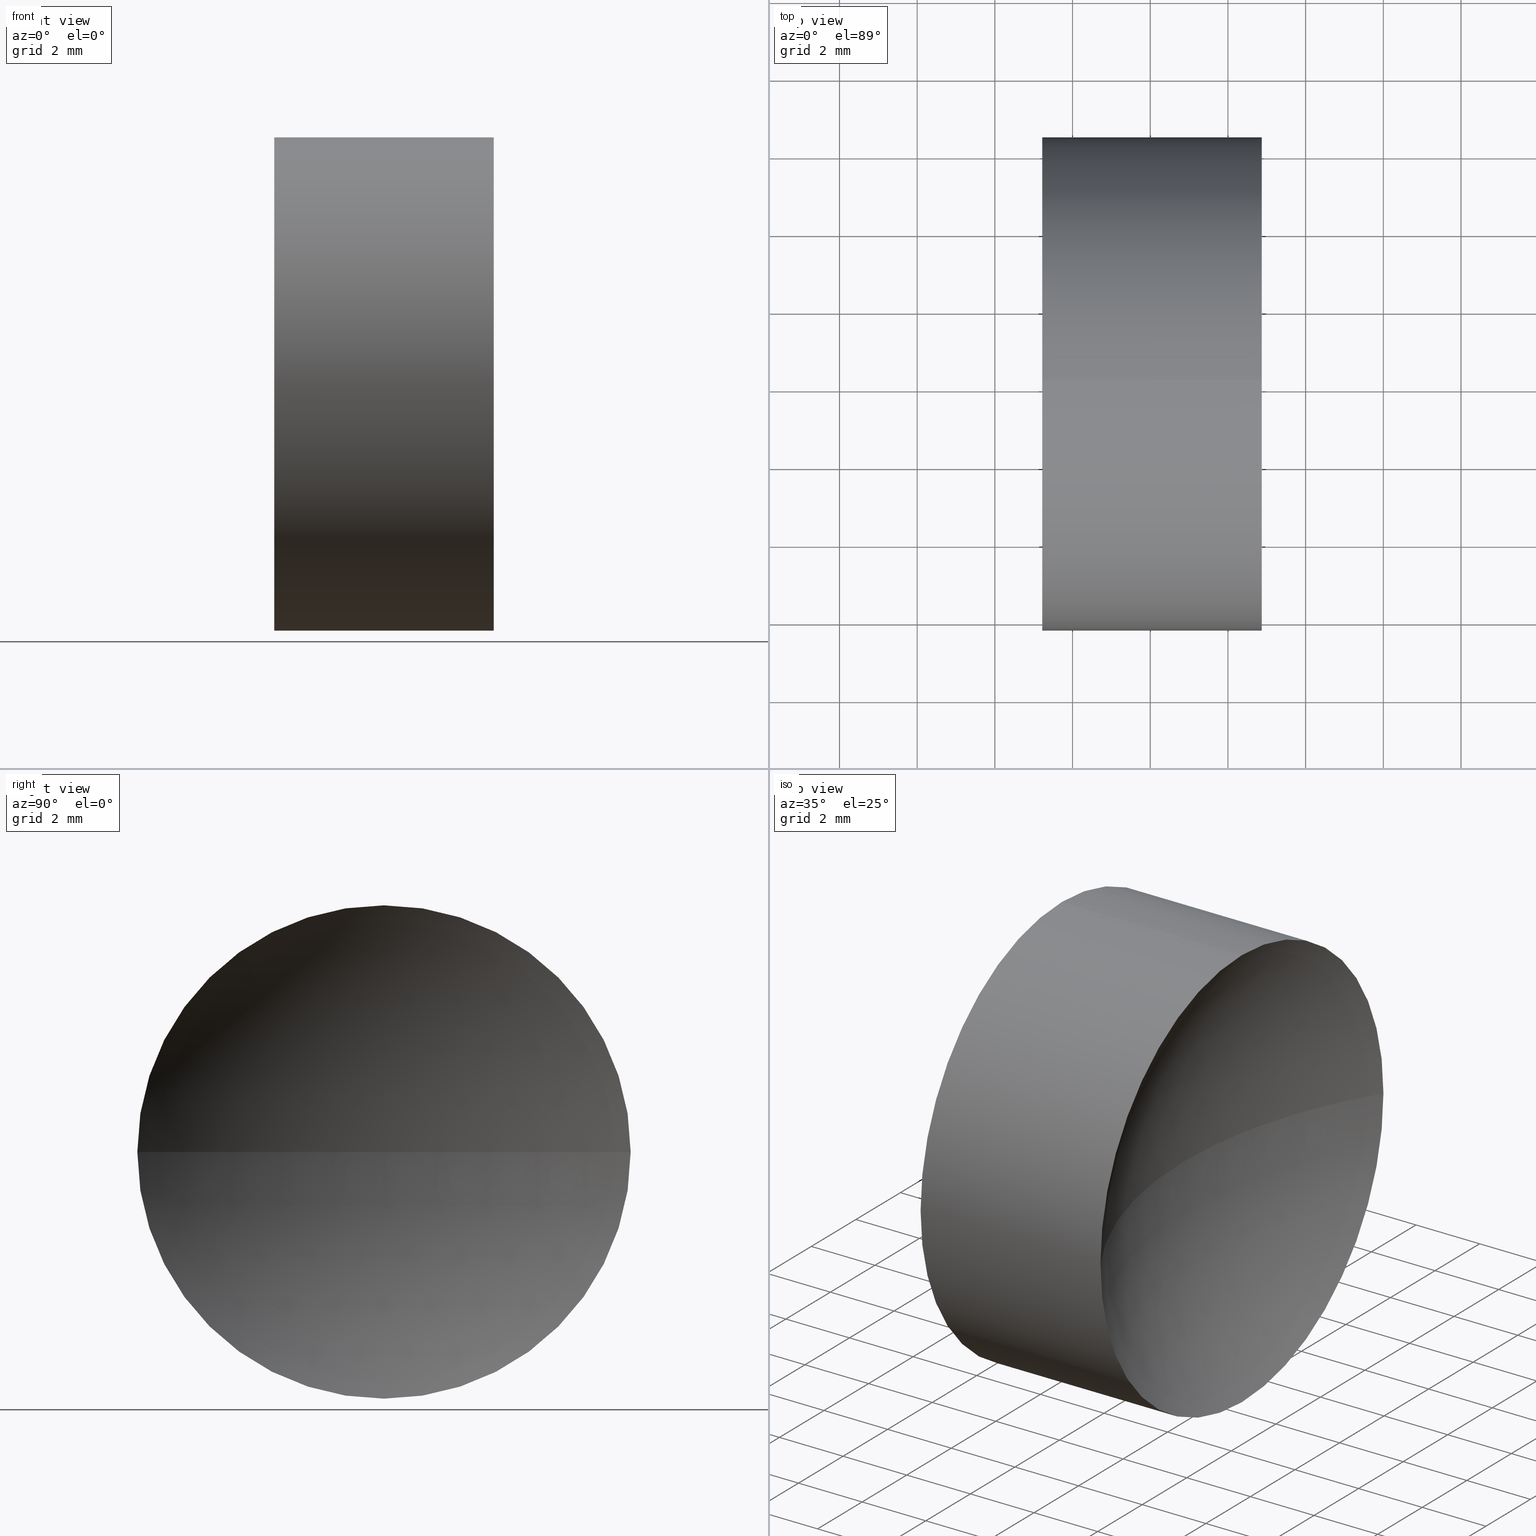
[diagram: canonical four-view strip — front | top / right | iso, engineering-drawing reading convention]
A machine part, canonical four-view strip (front | top / right | iso — engineering-drawing reading convention). The complete STEP part file that produces these views, byte-faithful:
ISO-10303-21;
HEADER;
FILE_DESCRIPTION (( 'STEP AP214' ),
    '1' );
FILE_NAME ('130054.STEP',
    '2019-07-02T03:27:17',
    ( '' ),
    ( '' ),
    'SwSTEP 2.0',
    'SolidWorks 2016',
    '' );
FILE_SCHEMA (( 'AUTOMOTIVE_DESIGN' ));
ENDSEC;

DATA;
#1 = VERTEX_POINT ( 'NONE', #7 ) ;
#2 = AXIS2_PLACEMENT_3D ( 'NONE', #103, #70, #120 ) ;
#3 = SURFACE_STYLE_FILL_AREA ( #156 ) ;
#4 = EDGE_CURVE ( 'NONE', #100, #23, #79, .T. ) ;
#5 = VERTEX_POINT ( 'NONE', #165 ) ;
#6 = ORIENTED_EDGE ( 'NONE', *, *, #162, .T. ) ;
#7 = CARTESIAN_POINT ( 'NONE',  ( 50.87198139630497500, 19.73904114919495700, 0.0000000000000000000 ) ) ;
#8 = PRODUCT_DEFINITION ( 'δ֪', '', #138, #195 ) ;
#9 = FILL_AREA_STYLE ('',( #210 ) ) ;
#10 = DIRECTION ( 'NONE',  ( 0.0000000000000000000, 1.000000000000000000, 0.0000000000000000000 ) ) ;
#11 = ORIENTED_EDGE ( 'NONE', *, *, #213, .F. ) ;
#12 = DIRECTION ( 'NONE',  ( 0.0000000000000000000, 0.0000000000000000000, -1.000000000000000000 ) ) ;
#13 = CIRCLE ( 'NONE', #94, 6.349999999999997900 ) ;
#14 = CARTESIAN_POINT ( 'NONE',  ( 45.21846257205499600, 26.08904114919495900, 6.349999999999997900 ) ) ;
#15 = DIRECTION ( 'NONE',  ( 0.0000000000000000000, 0.0000000000000000000, -1.000000000000000000 ) ) ;
#16 = AXIS2_PLACEMENT_3D ( 'NONE', #187, #188, #136 ) ;
#17 = CARTESIAN_POINT ( 'NONE',  ( 45.21846257205499600, 26.08904114919495900, 0.0000000000000000000 ) ) ;
#18 = PRODUCT_CONTEXT ( 'NONE', #174, 'mechanical' ) ;
#19 = DIRECTION ( 'NONE',  ( 0.0000000000000000000, 0.0000000000000000000, 1.000000000000000000 ) ) ;
#20 = EDGE_LOOP ( 'NONE', ( #208, #149, #77, #201 ) ) ;
#21 = CYLINDRICAL_SURFACE ( 'NONE', #151, 6.349999999999997900 ) ;
#22 = AXIS2_PLACEMENT_3D ( 'NONE', #66, #119, #84 ) ;
#23 = VERTEX_POINT ( 'NONE', #82 ) ;
#24 = PRODUCT_RELATED_PRODUCT_CATEGORY ( 'part', '', ( #229 ) ) ;
#25 = SURFACE_STYLE_FILL_AREA ( #9 ) ;
#26 = FACE_OUTER_BOUND ( 'NONE', #128, .T. ) ;
#27 = CARTESIAN_POINT ( 'NONE',  ( 60.99522198417998500, 26.08904114919495900, 0.0000000000000000000 ) ) ;
#28 = CARTESIAN_POINT ( 'NONE',  ( 42.44986111413682300, 26.08904114919495900, -6.349999999999997900 ) ) ;
#29 = SURFACE_SIDE_STYLE ('',( #25 ) ) ;
#30 = SPHERICAL_SURFACE ( 'NONE', #16, 11.94999999999999900 ) ;
#31 =( LENGTH_UNIT ( ) NAMED_UNIT ( * ) SI_UNIT ( .MILLI., .METRE. ) );
#32 = CIRCLE ( 'NONE', #127, 11.94999999999999900 ) ;
#33 = CARTESIAN_POINT ( 'NONE',  ( 35.09522198417998600, 26.08904114919495900, 0.0000000000000000000 ) ) ;
#34 = EDGE_CURVE ( 'NONE', #197, #190, #220, .T. ) ;
#35 = STYLED_ITEM ( 'NONE', ( #96 ), #95 ) ;
#36 = CARTESIAN_POINT ( 'NONE',  ( 35.09522198417998600, 26.08904114919495900, 0.0000000000000000000 ) ) ;
#37 = DIRECTION ( 'NONE',  ( 1.000000000000000000, 0.0000000000000000000, 0.0000000000000000000 ) ) ;
#38 = CARTESIAN_POINT ( 'NONE',  ( 45.21846257205499600, 26.08904114919495900, 0.0000000000000000000 ) ) ;
#39 = DIRECTION ( 'NONE',  ( 0.0000000000000000000, 0.0000000000000000000, 1.000000000000000000 ) ) ;
#40 = APPLICATION_PROTOCOL_DEFINITION ( 'draft international standard', 'automotive_design', 1998, #74 ) ;
#41 = SPHERICAL_SURFACE ( 'NONE', #46, 11.94999999999999800 ) ;
#42 = ORIENTED_EDGE ( 'NONE', *, *, #178, .T. ) ;
#43 = DIRECTION ( 'NONE',  ( -1.000000000000000000, -0.0000000000000000000, -0.0000000000000000000 ) ) ;
#44 = EDGE_CURVE ( 'NONE', #215, #113, #163, .T. ) ;
#45 = ADVANCED_FACE ( 'NONE', ( #132 ), #122, .F. ) ;
#46 = AXIS2_PLACEMENT_3D ( 'NONE', #33, #15, #10 ) ;
#47 = ORIENTED_EDGE ( 'NONE', *, *, #34, .T. ) ;
#48 = CARTESIAN_POINT ( 'NONE',  ( 35.09522198417998600, 26.08904114919495900, 0.0000000000000000000 ) ) ;
#49 = COLOUR_RGB ( '',1.000000000000000000, 1.000000000000000000, 1.000000000000000000 ) ;
#50 = DIRECTION ( 'NONE',  ( -1.000000000000000000, 0.0000000000000000000, 0.0000000000000000000 ) ) ;
#51 = CLOSED_SHELL ( 'NONE', ( #131, #97, #160, #45, #182, #114 ) ) ;
#52 = ORIENTED_EDGE ( 'NONE', *, *, #205, .T. ) ;
#53 = DIRECTION ( 'NONE',  ( 1.000000000000000000, 0.0000000000000000000, 0.0000000000000000000 ) ) ;
#54 = DIRECTION ( 'NONE',  ( 0.0000000000000000000, 0.0000000000000000000, 1.000000000000000000 ) ) ;
#55 = AXIS2_PLACEMENT_3D ( 'NONE', #194, #134, #121 ) ;
#56 = DIRECTION ( 'NONE',  ( 0.0000000000000000000, 0.0000000000000000000, 1.000000000000000000 ) ) ;
#57 = UNCERTAINTY_MEASURE_WITH_UNIT (LENGTH_MEASURE( 1.000000000000000100E-005 ), #110, 'distance_accuracy_value', 'NONE');
#58 = DIRECTION ( 'NONE',  ( 0.0000000000000000000, 0.0000000000000000000, 1.000000000000000000 ) ) ;
#59 = ORIENTED_EDGE ( 'NONE', *, *, #205, .F. ) ;
#60 = AXIS2_PLACEMENT_3D ( 'NONE', #68, #12, #50 ) ;
#61 = ORIENTED_EDGE ( 'NONE', *, *, #44, .T. ) ;
#62 = CIRCLE ( 'NONE', #118, 6.350000000000005000 ) ;
#63 = EDGE_LOOP ( 'NONE', ( #144, #167, #6, #61, #99, #59 ) ) ;
#64 = ORIENTED_EDGE ( 'NONE', *, *, #44, .F. ) ;
#65 = ORIENTED_EDGE ( 'NONE', *, *, #145, .T. ) ;
#66 = CARTESIAN_POINT ( 'NONE',  ( 42.44986111413682300, 26.08904114919495900, 0.0000000000000000000 ) ) ;
#67 = ORIENTED_EDGE ( 'NONE', *, *, #221, .T. ) ;
#68 = CARTESIAN_POINT ( 'NONE',  ( 60.99522198417998500, 26.08904114919495900, 0.0000000000000000000 ) ) ;
#69 = EDGE_LOOP ( 'NONE', ( #65, #111, #204, #141, #64, #137 ) ) ;
#70 = DIRECTION ( 'NONE',  ( -1.000000000000000000, -0.0000000000000000000, -0.0000000000000000000 ) ) ;
#71 = FACE_OUTER_BOUND ( 'NONE', #63, .T. ) ;
#72 = AXIS2_PLACEMENT_3D ( 'NONE', #36, #86, #53 ) ;
#73 =( GEOMETRIC_REPRESENTATION_CONTEXT ( 3 ) GLOBAL_UNCERTAINTY_ASSIGNED_CONTEXT ( ( #223 ) ) GLOBAL_UNIT_ASSIGNED_CONTEXT ( ( #140, #173, #179 ) ) REPRESENTATION_CONTEXT ( 'NONE', 'WORKASPACE' ) );
#74 = APPLICATION_CONTEXT ( 'automotive_design' ) ;
#75 = CARTESIAN_POINT ( 'NONE',  ( 45.21846257205499600, 26.08904114919495900, 0.0000000000000000000 ) ) ;
#76 = SPHERICAL_SURFACE ( 'NONE', #55, 11.94999999999999800 ) ;
#77 = ORIENTED_EDGE ( 'NONE', *, *, #148, .F. ) ;
#78 = CIRCLE ( 'NONE', #60, 11.94999999999999600 ) ;
#79 = LINE ( 'NONE', #28, #177 ) ;
#80 = AXIS2_PLACEMENT_3D ( 'NONE', #153, #214, #54 ) ;
#81 =( GEOMETRIC_REPRESENTATION_CONTEXT ( 3 ) GLOBAL_UNCERTAINTY_ASSIGNED_CONTEXT ( ( #193 ) ) GLOBAL_UNIT_ASSIGNED_CONTEXT ( ( #31, #230, #147 ) ) REPRESENTATION_CONTEXT ( 'NONE', 'WORKASPACE' ) );
#82 = CARTESIAN_POINT ( 'NONE',  ( 45.21846257205499600, 26.08904114919495900, -6.349999999999997900 ) ) ;
#83 = CARTESIAN_POINT ( 'NONE',  ( 42.44986111413682300, 26.08904114919495900, 6.349999999999997900 ) ) ;
#84 = DIRECTION ( 'NONE',  ( 0.0000000000000000000, 0.0000000000000000000, 1.000000000000000000 ) ) ;
#85 = VECTOR ( 'NONE', #168, 1000.000000000000000 ) ;
#86 = DIRECTION ( 'NONE',  ( 0.0000000000000000000, 0.0000000000000000000, 1.000000000000000000 ) ) ;
#87 = DIRECTION ( 'NONE',  ( 0.0000000000000000000, 0.0000000000000000000, 1.000000000000000000 ) ) ;
#88 = CARTESIAN_POINT ( 'NONE',  ( 50.87198139630497500, 26.08904114919495900, 6.350000000000005000 ) ) ;
#89 = CARTESIAN_POINT ( 'NONE',  ( 45.21846257205499600, 32.43904114919494900, 0.0000000000000000000 ) ) ;
#90 = FILL_AREA_STYLE_COLOUR ( '', #49 ) ;
#91 = CIRCLE ( 'NONE', #72, 11.94999999999999600 ) ;
#92 = EDGE_CURVE ( 'NONE', #5, #93, #32, .T. ) ;
#93 = VERTEX_POINT ( 'NONE', #186 ) ;
#94 = AXIS2_PLACEMENT_3D ( 'NONE', #75, #139, #39 ) ;
#95 = ADVANCED_BREP_SHAPE_REPRESENTATION ( '130054', ( #172, #207 ), #73 ) ;
#97 = ADVANCED_FACE ( 'NONE', ( #158 ), #224, .T. ) ;
#96 = PRESENTATION_STYLE_ASSIGNMENT (( #176 ) ) ;
#98 = AXIS2_PLACEMENT_3D ( 'NONE', #170, #191, #87 ) ;
#99 = ORIENTED_EDGE ( 'NONE', *, *, #221, .F. ) ;
#100 = VERTEX_POINT ( 'NONE', #123 ) ;
#101 = DIRECTION ( 'NONE',  ( 0.0000000000000000000, -1.000000000000000000, 0.0000000000000000000 ) ) ;
#102 = CARTESIAN_POINT ( 'NONE',  ( 60.99522198417998500, 26.08904114919495900, 0.0000000000000000000 ) ) ;
#103 = CARTESIAN_POINT ( 'NONE',  ( 50.87198139630497500, 26.08904114919495900, 0.0000000000000000000 ) ) ;
#104 = CARTESIAN_POINT ( 'NONE',  ( 47.04522198417998200, 26.08904114919495900, 0.0000000000000000000 ) ) ;
#105 = EDGE_LOOP ( 'NONE', ( #124, #11, #169, #200 ) ) ;
#106 = CARTESIAN_POINT ( 'NONE',  ( 0.0000000000000000000, 0.0000000000000000000, 0.0000000000000000000 ) ) ;
#107 = AXIS2_PLACEMENT_3D ( 'NONE', #27, #209, #101 ) ;
#108 = AXIS2_PLACEMENT_3D ( 'NONE', #199, #155, #58 ) ;
#109 = ORIENTED_EDGE ( 'NONE', *, *, #159, .F. ) ;
#110 =( LENGTH_UNIT ( ) NAMED_UNIT ( * ) SI_UNIT ( .MILLI., .METRE. ) );
#111 = ORIENTED_EDGE ( 'NONE', *, *, #4, .T. ) ;
#112 = AXIS2_PLACEMENT_3D ( 'NONE', #38, #43, #19 ) ;
#113 = VERTEX_POINT ( 'NONE', #14 ) ;
#114 = ADVANCED_FACE ( 'NONE', ( #116 ), #76, .F. ) ;
#115 = EDGE_LOOP ( 'NONE', ( #184, #222, #42, #52 ) ) ;
#116 = FACE_OUTER_BOUND ( 'NONE', #115, .T. ) ;
#117 = STYLED_ITEM ( 'NONE', ( #130 ), #172 ) ;
#118 = AXIS2_PLACEMENT_3D ( 'NONE', #157, #217, #218 ) ;
#119 = DIRECTION ( 'NONE',  ( -1.000000000000000000, -0.0000000000000000000, -0.0000000000000000000 ) ) ;
#120 = DIRECTION ( 'NONE',  ( 0.0000000000000000000, 0.0000000000000000000, 1.000000000000000000 ) ) ;
#121 = DIRECTION ( 'NONE',  ( 0.0000000000000000000, 1.000000000000000000, 0.0000000000000000000 ) ) ;
#122 = SPHERICAL_SURFACE ( 'NONE', #107, 11.94999999999999900 ) ;
#123 = CARTESIAN_POINT ( 'NONE',  ( 50.87198139630497500, 26.08904114919495900, -6.350000000000005000 ) ) ;
#124 = ORIENTED_EDGE ( 'NONE', *, *, #92, .F. ) ;
#125 = APPLICATION_PROTOCOL_DEFINITION ( 'draft international standard', 'automotive_design', 1998, #174 ) ;
#126 = CIRCLE ( 'NONE', #2, 6.350000000000005000 ) ;
#127 = AXIS2_PLACEMENT_3D ( 'NONE', #102, #212, #211 ) ;
#128 = EDGE_LOOP ( 'NONE', ( #109, #47, #67, #143 ) ) ;
#129 = MECHANICAL_DESIGN_GEOMETRIC_PRESENTATION_REPRESENTATION (  '', ( #35 ), #133 ) ;
#130 = PRESENTATION_STYLE_ASSIGNMENT (( #146 ) ) ;
#131 = ADVANCED_FACE ( 'NONE', ( #26 ), #41, .F. ) ;
#132 = FACE_OUTER_BOUND ( 'NONE', #105, .T. ) ;
#133 =( GEOMETRIC_REPRESENTATION_CONTEXT ( 3 ) GLOBAL_UNCERTAINTY_ASSIGNED_CONTEXT ( ( #57 ) ) GLOBAL_UNIT_ASSIGNED_CONTEXT ( ( #110, #154, #232 ) ) REPRESENTATION_CONTEXT ( 'NONE', 'WORKASPACE' ) );
#134 = DIRECTION ( 'NONE',  ( 0.0000000000000000000, 0.0000000000000000000, -1.000000000000000000 ) ) ;
#135 = DIRECTION ( 'NONE',  ( -1.000000000000000000, -0.0000000000000000000, -0.0000000000000000000 ) ) ;
#136 = DIRECTION ( 'NONE',  ( 0.0000000000000000000, -1.000000000000000000, 0.0000000000000000000 ) ) ;
#137 = ORIENTED_EDGE ( 'NONE', *, *, #213, .T. ) ;
#138 = PRODUCT_DEFINITION_FORMATION_WITH_SPECIFIED_SOURCE ( '�κ�', '', #229, .NOT_KNOWN. ) ;
#139 = DIRECTION ( 'NONE',  ( -1.000000000000000000, -0.0000000000000000000, -0.0000000000000000000 ) ) ;
#140 =( LENGTH_UNIT ( ) NAMED_UNIT ( * ) SI_UNIT ( .MILLI., .METRE. ) );
#141 = ORIENTED_EDGE ( 'NONE', *, *, #203, .F. ) ;
#142 = CIRCLE ( 'NONE', #98, 6.349999999999997900 ) ;
#143 = ORIENTED_EDGE ( 'NONE', *, *, #203, .T. ) ;
#144 = ORIENTED_EDGE ( 'NONE', *, *, #4, .F. ) ;
#145 = EDGE_CURVE ( 'NONE', #5, #100, #126, .T. ) ;
#146 = SURFACE_STYLE_USAGE ( .BOTH. , #29 ) ;
#147 =( NAMED_UNIT ( * ) SI_UNIT ( $, .STERADIAN. ) SOLID_ANGLE_UNIT ( ) );
#148 = EDGE_CURVE ( 'NONE', #1, #93, #78, .T. ) ;
#149 = ORIENTED_EDGE ( 'NONE', *, *, #92, .T. ) ;
#150 = VERTEX_POINT ( 'NONE', #89 ) ;
#151 = AXIS2_PLACEMENT_3D ( 'NONE', #152, #135, #231 ) ;
#152 = CARTESIAN_POINT ( 'NONE',  ( 42.44986111413682300, 26.08904114919495900, 0.0000000000000000000 ) ) ;
#153 = CARTESIAN_POINT ( 'NONE',  ( 50.87198139630497500, 26.08904114919495900, 0.0000000000000000000 ) ) ;
#154 =( NAMED_UNIT ( * ) PLANE_ANGLE_UNIT ( ) SI_UNIT ( $, .RADIAN. ) );
#155 = DIRECTION ( 'NONE',  ( -1.000000000000000000, -0.0000000000000000000, -0.0000000000000000000 ) ) ;
#156 = FILL_AREA_STYLE ('',( #90 ) ) ;
#157 = CARTESIAN_POINT ( 'NONE',  ( 50.87198139630497500, 26.08904114919495900, 0.0000000000000000000 ) ) ;
#158 = FACE_OUTER_BOUND ( 'NONE', #69, .T. ) ;
#159 = EDGE_CURVE ( 'NONE', #197, #150, #91, .T. ) ;
#160 = ADVANCED_FACE ( 'NONE', ( #175 ), #30, .F. ) ;
#161 = COLOUR_RGB ( '',1.000000000000000000, 1.000000000000000000, 1.000000000000000000 ) ;
#162 = EDGE_CURVE ( 'NONE', #1, #215, #219, .T. ) ;
#163 = LINE ( 'NONE', #83, #85 ) ;
#164 = PRESENTATION_LAYER_ASSIGNMENT (  '', '', ( #35 ) ) ;
#165 = CARTESIAN_POINT ( 'NONE',  ( 50.87198139630497500, 32.43904114919496400, 7.776507174585694100E-016 ) ) ;
#166 = DIRECTION ( 'NONE',  ( 0.0000000000000000000, 1.224646799147353200E-016, -1.000000000000000000 ) ) ;
#167 = ORIENTED_EDGE ( 'NONE', *, *, #226, .T. ) ;
#168 = DIRECTION ( 'NONE',  ( -1.000000000000000000, -0.0000000000000000000, -0.0000000000000000000 ) ) ;
#169 = ORIENTED_EDGE ( 'NONE', *, *, #162, .F. ) ;
#170 = CARTESIAN_POINT ( 'NONE',  ( 45.21846257205499600, 26.08904114919495900, 0.0000000000000000000 ) ) ;
#171 = AXIS2_PLACEMENT_3D ( 'NONE', #48, #166, #227 ) ;
#172 = MANIFOLD_SOLID_BREP ( '��ת1', #51 ) ;
#173 =( NAMED_UNIT ( * ) PLANE_ANGLE_UNIT ( ) SI_UNIT ( $, .RADIAN. ) );
#174 = APPLICATION_CONTEXT ( 'automotive_design' ) ;
#175 = FACE_OUTER_BOUND ( 'NONE', #20, .T. ) ;
#176 = SURFACE_STYLE_USAGE ( .BOTH. , #196 ) ;
#177 = VECTOR ( 'NONE', #225, 1000.000000000000000 ) ;
#178 = EDGE_CURVE ( 'NONE', #150, #23, #142, .T. ) ;
#179 =( NAMED_UNIT ( * ) SI_UNIT ( $, .STERADIAN. ) SOLID_ANGLE_UNIT ( ) );
#180 = AXIS2_PLACEMENT_3D ( 'NONE', #17, #216, #198 ) ;
#181 = SHAPE_DEFINITION_REPRESENTATION ( #183, #95 ) ;
#182 = ADVANCED_FACE ( 'NONE', ( #71 ), #21, .T. ) ;
#183 = PRODUCT_DEFINITION_SHAPE ( 'NONE', 'NONE',  #8 ) ;
#184 = ORIENTED_EDGE ( 'NONE', *, *, #34, .F. ) ;
#185 = MECHANICAL_DESIGN_GEOMETRIC_PRESENTATION_REPRESENTATION (  '', ( #117 ), #81 ) ;
#186 = CARTESIAN_POINT ( 'NONE',  ( 49.04522198417998900, 26.08904114919495900, 0.0000000000000000000 ) ) ;
#187 = CARTESIAN_POINT ( 'NONE',  ( 60.99522198417998500, 26.08904114919495900, 0.0000000000000000000 ) ) ;
#188 = DIRECTION ( 'NONE',  ( 0.0000000000000000000, 0.0000000000000000000, 1.000000000000000000 ) ) ;
#189 = PRESENTATION_LAYER_ASSIGNMENT (  '', '', ( #117 ) ) ;
#190 = VERTEX_POINT ( 'NONE', #228 ) ;
#191 = DIRECTION ( 'NONE',  ( -1.000000000000000000, -0.0000000000000000000, -0.0000000000000000000 ) ) ;
#192 = CIRCLE ( 'NONE', #112, 6.349999999999997900 ) ;
#193 = UNCERTAINTY_MEASURE_WITH_UNIT (LENGTH_MEASURE( 1.000000000000000100E-005 ), #31, 'distance_accuracy_value', 'NONE');
#194 = CARTESIAN_POINT ( 'NONE',  ( 35.09522198417998600, 26.08904114919495900, 0.0000000000000000000 ) ) ;
#195 = PRODUCT_DEFINITION_CONTEXT ( 'detailed design', #74, 'design' ) ;
#196 = SURFACE_SIDE_STYLE ('',( #3 ) ) ;
#197 = VERTEX_POINT ( 'NONE', #104 ) ;
#198 = DIRECTION ( 'NONE',  ( 0.0000000000000000000, 0.0000000000000000000, 1.000000000000000000 ) ) ;
#199 = CARTESIAN_POINT ( 'NONE',  ( 50.87198139630497500, 26.08904114919495900, 0.0000000000000000000 ) ) ;
#200 = ORIENTED_EDGE ( 'NONE', *, *, #148, .T. ) ;
#201 = ORIENTED_EDGE ( 'NONE', *, *, #226, .F. ) ;
#202 = CIRCLE ( 'NONE', #108, 6.350000000000005000 ) ;
#203 = EDGE_CURVE ( 'NONE', #113, #150, #206, .T. ) ;
#204 = ORIENTED_EDGE ( 'NONE', *, *, #178, .F. ) ;
#205 = EDGE_CURVE ( 'NONE', #23, #190, #13, .T. ) ;
#206 = CIRCLE ( 'NONE', #180, 6.349999999999997900 ) ;
#207 = AXIS2_PLACEMENT_3D ( 'NONE', #106, #56, #37 ) ;
#208 = ORIENTED_EDGE ( 'NONE', *, *, #145, .F. ) ;
#209 = DIRECTION ( 'NONE',  ( 0.0000000000000000000, 0.0000000000000000000, 1.000000000000000000 ) ) ;
#210 = FILL_AREA_STYLE_COLOUR ( '', #161 ) ;
#211 = DIRECTION ( 'NONE',  ( 0.0000000000000000000, -1.000000000000000000, -1.224646799147353200E-016 ) ) ;
#212 = DIRECTION ( 'NONE',  ( 0.0000000000000000000, -1.224646799147353200E-016, 1.000000000000000000 ) ) ;
#213 = EDGE_CURVE ( 'NONE', #215, #5, #62, .T. ) ;
#214 = DIRECTION ( 'NONE',  ( -1.000000000000000000, -0.0000000000000000000, -0.0000000000000000000 ) ) ;
#215 = VERTEX_POINT ( 'NONE', #88 ) ;
#216 = DIRECTION ( 'NONE',  ( -1.000000000000000000, -0.0000000000000000000, -0.0000000000000000000 ) ) ;
#217 = DIRECTION ( 'NONE',  ( -1.000000000000000000, -0.0000000000000000000, -0.0000000000000000000 ) ) ;
#218 = DIRECTION ( 'NONE',  ( 0.0000000000000000000, 0.0000000000000000000, 1.000000000000000000 ) ) ;
#219 = CIRCLE ( 'NONE', #80, 6.350000000000005000 ) ;
#220 = CIRCLE ( 'NONE', #171, 11.94999999999999900 ) ;
#221 = EDGE_CURVE ( 'NONE', #190, #113, #192, .T. ) ;
#222 = ORIENTED_EDGE ( 'NONE', *, *, #159, .T. ) ;
#223 = UNCERTAINTY_MEASURE_WITH_UNIT (LENGTH_MEASURE( 1.000000000000000100E-005 ), #140, 'distance_accuracy_value', 'NONE');
#224 = CYLINDRICAL_SURFACE ( 'NONE', #22, 6.349999999999997900 ) ;
#225 = DIRECTION ( 'NONE',  ( -1.000000000000000000, -0.0000000000000000000, -0.0000000000000000000 ) ) ;
#226 = EDGE_CURVE ( 'NONE', #100, #1, #202, .T. ) ;
#227 = DIRECTION ( 'NONE',  ( 0.0000000000000000000, 1.000000000000000000, 1.224646799147353000E-016 ) ) ;
#228 = CARTESIAN_POINT ( 'NONE',  ( 45.21846257205499600, 19.73904114919496400, -7.776507174585687200E-016 ) ) ;
#229 = PRODUCT ( '130054', '130054', '', ( #18 ) ) ;
#230 =( NAMED_UNIT ( * ) PLANE_ANGLE_UNIT ( ) SI_UNIT ( $, .RADIAN. ) );
#231 = DIRECTION ( 'NONE',  ( 0.0000000000000000000, 0.0000000000000000000, 1.000000000000000000 ) ) ;
#232 =( NAMED_UNIT ( * ) SI_UNIT ( $, .STERADIAN. ) SOLID_ANGLE_UNIT ( ) );
ENDSEC;
END-ISO-10303-21;
